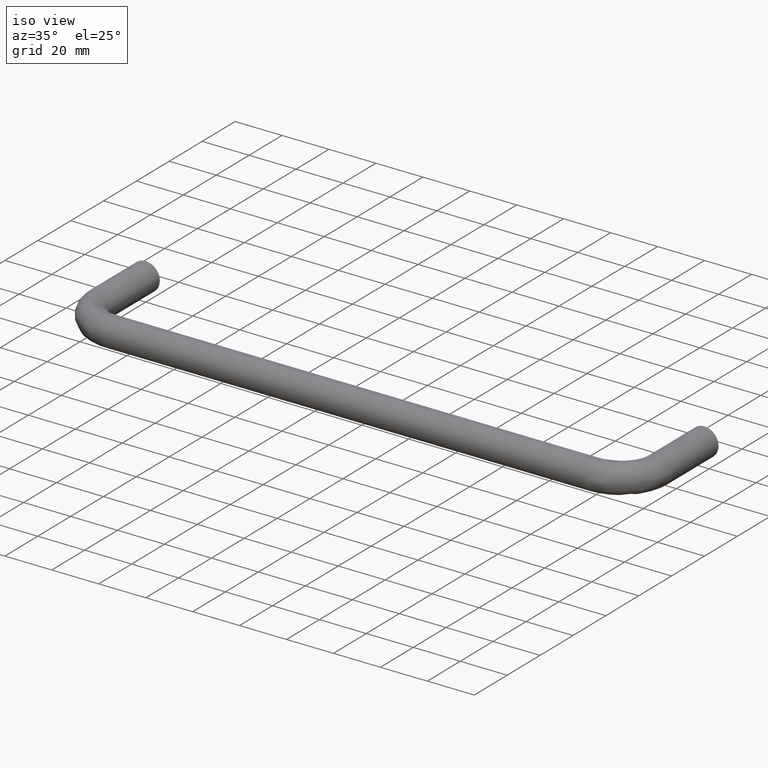
[diagram: clean part render]
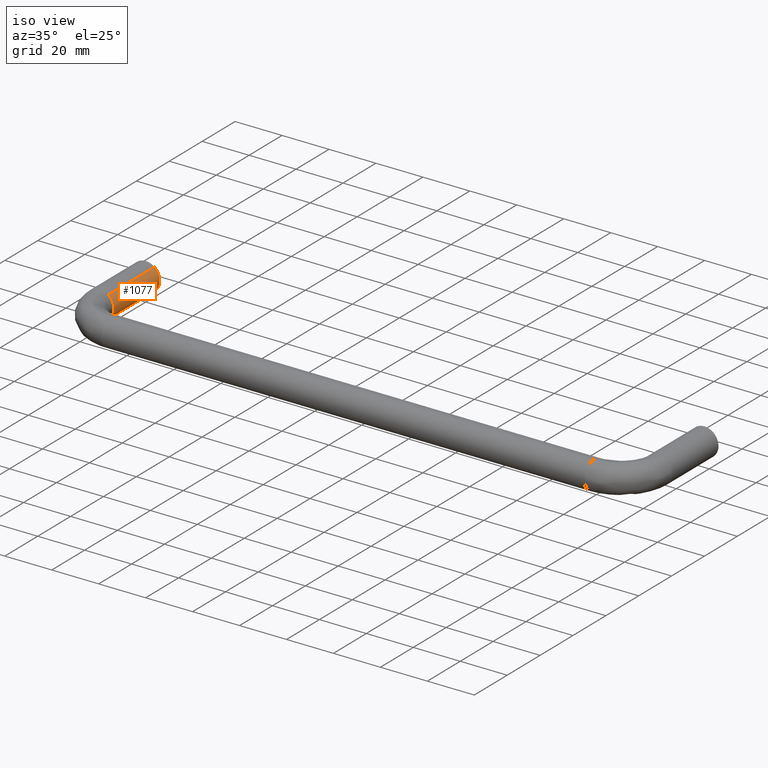
[diagram: same view with one face highlighted and labeled with its STEP entity id]
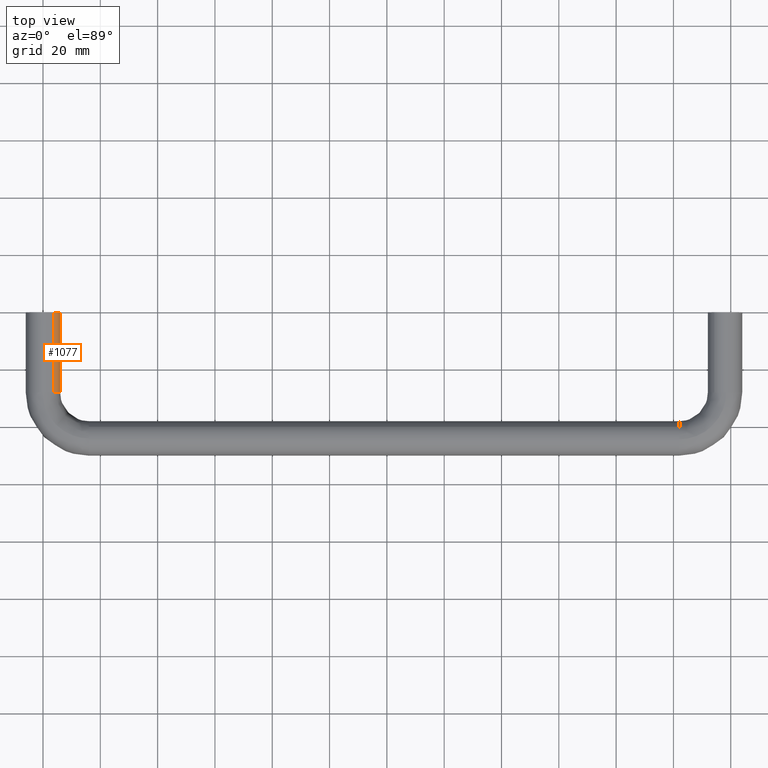
[diagram: same view with one face highlighted and labeled with its STEP entity id]
A machine part, iso view. The second image highlights one B-rep face of the part: STEP entity #1077.
A second angle (top view) of the same face is appended — the face is thin or edge-on in the first view.
In plain terms, the highlighted face is a freeform B-spline surface patch.
Its self-contained STEP definition (entity closure, byte-faithful):
#886=CARTESIAN_POINT('',(3.735087819828283,-28.0,4.695648941112445));
#887=VERTEX_POINT('',#886);
#903=CARTESIAN_POINT('',(3.735087819830603,-5.551115E-017,4.695648941110596));
#904=VERTEX_POINT('',#903);
#905=CARTESIAN_POINT('',(3.735087819830603,-5.551115E-017,4.695648941110596));
#906=CARTESIAN_POINT('',(3.735087819828283,-28.0,4.695648941112445));
#907=QUASI_UNIFORM_CURVE('',1,(#905,#906),.UNSPECIFIED.,.F.,.U.);
#908=EDGE_CURVE('',#904,#887,#907,.T.);
#927=CARTESIAN_POINT('',(-3.735087819830604,1.110223E-015,-4.695648941110595));
#928=VERTEX_POINT('',#927);
#942=CARTESIAN_POINT('',(-3.735087819828275,-28.0,-4.695648941112445));
#943=VERTEX_POINT('',#942);
#944=CARTESIAN_POINT('',(-3.735087819830604,1.110223E-015,-4.695648941110595));
#945=CARTESIAN_POINT('',(-3.735087819828275,-28.0,-4.695648941112445));
#946=QUASI_UNIFORM_CURVE('',1,(#944,#945),.UNSPECIFIED.,.F.,.U.);
#947=EDGE_CURVE('',#928,#943,#946,.T.);
#980=CARTESIAN_POINT('',(-3.735087819825715,0.700000000524750,-4.695648941114483));
#981=CARTESIAN_POINT('',(0.960561121288767,0.700000000524751,-8.430736760940198));
#982=CARTESIAN_POINT('',(4.695648941114483,0.700000000524751,-3.735087819825715));
#983=CARTESIAN_POINT('',(8.430736760940198,0.700000000524751,0.960561121288767));
#984=CARTESIAN_POINT('',(3.735087819825715,0.700000000524751,4.695648941114483));
#985=CARTESIAN_POINT('',(-3.735087819825712,-28.717500021527830,-4.695648941114483));
#986=CARTESIAN_POINT('',(0.960561121288771,-28.717500021527826,-8.430736760940198));
#987=CARTESIAN_POINT('',(4.695648941114486,-28.717500021527830,-3.735087819825715));
#988=CARTESIAN_POINT('',(8.430736760940201,-28.717500021527826,0.960561121288767));
#989=CARTESIAN_POINT('',(3.735087819825719,-28.717500021527830,4.695648941114483));
#997=(BOUNDED_SURFACE()B_SPLINE_SURFACE(2,1,((#980,#985),(#981,#986),(#982,#987),(#983,#988),(#984,#989)),.UNSPECIFIED.,.F.,.F.,.U.)B_SPLINE_SURFACE_WITH_KNOTS((3,2,3),(2,2),(0.0,9.941125496954280,19.882250993908560),(0.0,29.417500022052579),.UNSPECIFIED.)GEOMETRIC_REPRESENTATION_ITEM()RATIONAL_B_SPLINE_SURFACE(((1.0,1.0),(0.707106781186548,0.707106781186548),(1.0,1.0),(0.707106781186548,0.707106781186548),(1.0,1.0)))REPRESENTATION_ITEM('')SURFACE());
#998=CARTESIAN_POINT('',(6.000000000000004,-28.0,0.0));
#999=VERTEX_POINT('',#998);
#1000=CARTESIAN_POINT('',(3.735087819828283,-27.999999999999996,4.695648941112445));
#1001=CARTESIAN_POINT('',(6.000000000000004,-27.999999999999996,2.894056444901388));
#1002=CARTESIAN_POINT('',(6.000000000000004,-28.0,0.0));
#1010=(BOUNDED_CURVE()B_SPLINE_CURVE(2,(#1000,#1001,#1002),.UNSPECIFIED.,.F.,.U.)B_SPLINE_CURVE_WITH_KNOTS((3,3),(0.857863877391611,1.0),.UNSPECIFIED.)CURVE()GEOMETRIC_REPRESENTATION_ITEM()RATIONAL_B_SPLINE_CURVE((0.856305618644017,0.833477174158261,1.0))REPRESENTATION_ITEM(''));
#1011=EDGE_CURVE('',#887,#999,#1010,.T.);
#1012=ORIENTED_EDGE('',*,*,#1011,.T.);
#1013=CARTESIAN_POINT('',(0.418400040314895,-28.000000020989962,-5.985394005933461));
#1014=VERTEX_POINT('',#1013);
#1015=CARTESIAN_POINT('',(6.000000000000004,-28.0,0.0));
#1016=CARTESIAN_POINT('',(6.000000000000005,-27.999999999999993,-5.595220088664499));
#1017=CARTESIAN_POINT('',(0.418400040314895,-28.000000020989962,-5.985394005933461));
#1025=(BOUNDED_CURVE()B_SPLINE_CURVE(2,(#1015,#1016,#1017),.UNSPECIFIED.,.F.,.U.)B_SPLINE_CURVE_WITH_KNOTS((3,3),(0.0,0.237833656027868),.UNSPECIFIED.)CURVE()GEOMETRIC_REPRESENTATION_ITEM()RATIONAL_B_SPLINE_CURVE((1.0,0.721360539775306,0.972879811861576))REPRESENTATION_ITEM(''));
#1026=EDGE_CURVE('',#999,#1014,#1025,.T.);
#1027=ORIENTED_EDGE('',*,*,#1026,.T.);
#1028=CARTESIAN_POINT('',(0.418400040314895,-28.000000020989955,-5.985394005933461));
#1029=CARTESIAN_POINT('',(0.209455228054476,-27.999999999999996,-6.0));
#1030=CARTESIAN_POINT('',(3.428898E-015,-28.0,-6.0));
#1031=CARTESIAN_POINT('',(-2.095293800532903,-27.999999999999989,-5.999999999999999));
#1032=CARTESIAN_POINT('',(-3.735087819828275,-28.000000000000004,-4.695648941112445));
#1040=(BOUNDED_CURVE()B_SPLINE_CURVE(2,(#1028,#1029,#1030,#1031,#1032),.UNSPECIFIED.,.F.,.U.)B_SPLINE_CURVE_WITH_KNOTS((3,2,3),(0.237833656027867,0.250000000000000,0.357863877391610),.UNSPECIFIED.)CURVE()GEOMETRIC_REPRESENTATION_ITEM()RATIONAL_B_SPLINE_CURVE((0.972879811861576,0.985746241411242,1.0,0.873629607028287,0.856305618644017))REPRESENTATION_ITEM(''));
#1041=EDGE_CURVE('',#1014,#943,#1040,.T.);
#1042=ORIENTED_EDGE('',*,*,#1041,.T.);
#1043=ORIENTED_EDGE('',*,*,#947,.F.);
#1044=CARTESIAN_POINT('',(6.0,0.0,0.0));
#1045=VERTEX_POINT('',#1044);
#1046=CARTESIAN_POINT('',(6.0,0.0,0.0));
#1047=CARTESIAN_POINT('',(6.0,0.0,-6.0));
#1048=CARTESIAN_POINT('',(0.0,0.0,-6.0));
#1049=CARTESIAN_POINT('',(-2.095293800536251,0.0,-6.000000000000001));
#1050=CARTESIAN_POINT('',(-3.735087819830604,1.110223E-015,-4.695648941110595));
#1058=(BOUNDED_CURVE()B_SPLINE_CURVE(2,(#1046,#1047,#1048,#1049,#1050),.UNSPECIFIED.,.F.,.U.)B_SPLINE_CURVE_WITH_KNOTS((3,2,3),(0.0,0.250000000000000,0.357863877391761),.UNSPECIFIED.)CURVE()GEOMETRIC_REPRESENTATION_ITEM()RATIONAL_B_SPLINE_CURVE((1.0,0.707106781186548,1.0,0.873629607028110,0.856305618643969))REPRESENTATION_ITEM(''));
#1059=EDGE_CURVE('',#1045,#928,#1058,.T.);
#1060=ORIENTED_EDGE('',*,*,#1059,.F.);
#1061=CARTESIAN_POINT('',(3.735087819830604,-5.551115E-017,4.695648941110596));
#1062=CARTESIAN_POINT('',(6.000000000000001,0.0,2.894056444897727));
#1063=CARTESIAN_POINT('',(6.0,0.0,0.0));
#1071=(BOUNDED_CURVE()B_SPLINE_CURVE(2,(#1061,#1062,#1063),.UNSPECIFIED.,.F.,.U.)B_SPLINE_CURVE_WITH_KNOTS((3,3),(0.857863877391761,1.0),.UNSPECIFIED.)CURVE()GEOMETRIC_REPRESENTATION_ITEM()RATIONAL_B_SPLINE_CURVE((0.856305618643969,0.833477174158437,1.0))REPRESENTATION_ITEM(''));
#1072=EDGE_CURVE('',#904,#1045,#1071,.T.);
#1073=ORIENTED_EDGE('',*,*,#1072,.F.);
#1074=ORIENTED_EDGE('',*,*,#908,.T.);
#1075=EDGE_LOOP('',(#1012,#1027,#1042,#1043,#1060,#1073,#1074));
#1076=FACE_OUTER_BOUND('',#1075,.T.);
#1077=ADVANCED_FACE('',(#1076),#997,.T.);